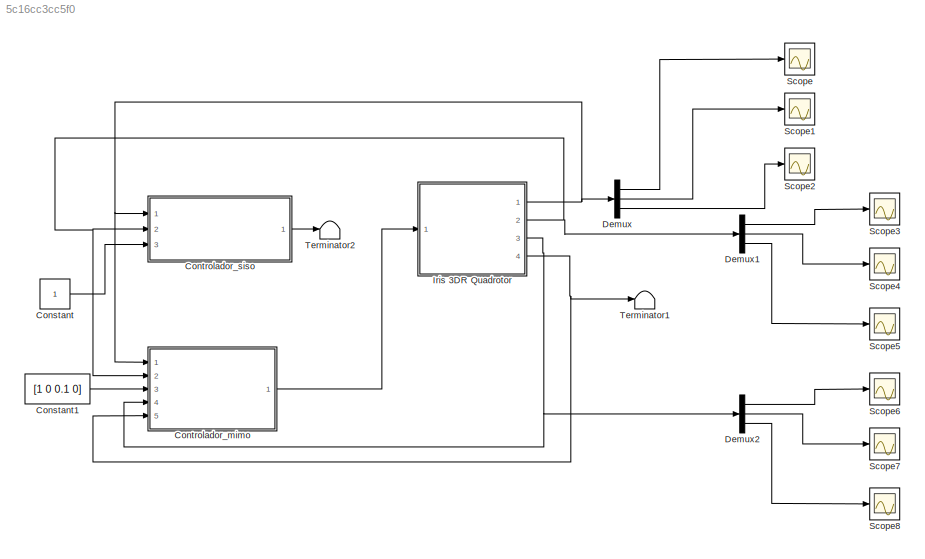
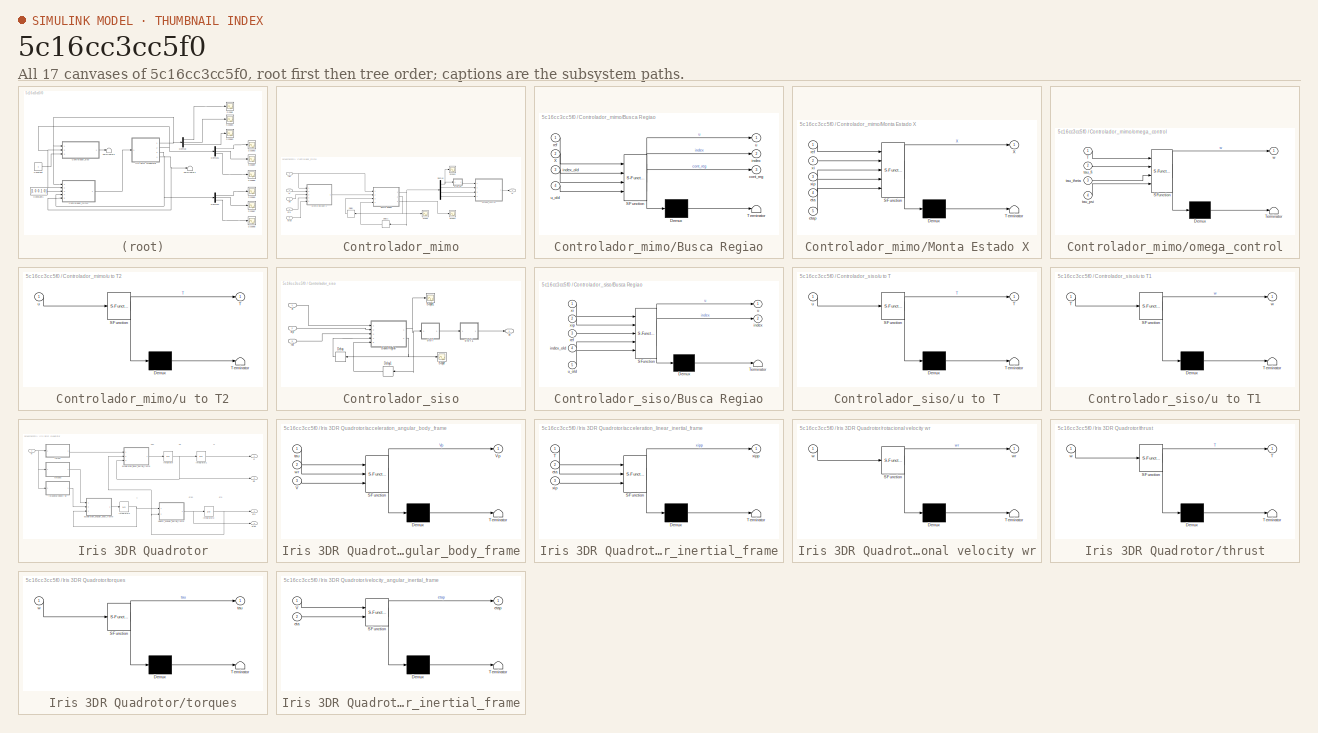
[diagram: thumbnail index - all 17 canvases of the model, root first then tree order]
MODEL slx_5c16cc3cc5f0
KIND model
CONFIG AbsTol = auto
CONFIG FixedStep = 0.01
CONFIG MaxStep = auto
CONFIG MinStep = auto
CONFIG RelTol = 1e-3
CONFIG SampleTimeConstraint = Unconstrained
CONFIG Solver = ode1
CONFIG SolverMode = Auto
CONFIG SolverName = ode1
CONFIG StartTime = 0.0
CONFIG StopTime = 25
BLOCK [Constant] Constant
BLOCK [Constant] Constant1
  Value = [1 0 0.1 0]
BLOCK [SubSystem] Controlador_mimo
  Ports = [5, 1]
  RequestExecContextInheritance = off
  Variant = off
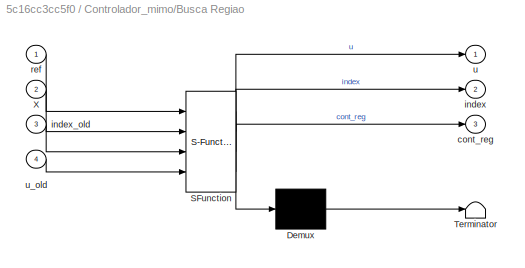
BLOCK [SubSystem] Controlador_mimo/Busca Regiao
  ErrorFcn = Stateflow.Translate.translate
  InitFcn = data = load('example_struct_regions_n10_nu2.mat');\nstruct_regions = data.reg_struct;
  PermitHierarchicalResolution = ExplicitOnly
  Ports = [4, 3]
  RequestExecContextInheritance = off
  SFBlockType = MATLAB Function
  TreatAsAtomicUnit = on
  Variant = off
BLOCK [Demux] Controlador_mimo/Busca Regiao/ Demux 
  Outputs = 1
  Ports = [1, 1]
BLOCK [S-Function] Controlador_mimo/Busca Regiao/ SFunction 
  EnableBusSupport = on
  FunctionName = sf_sfun
  Parameters = struct_regions
  PortCounts = [4 4]
  Ports = [4, 4]
  SFunctionDeploymentMode = off
  Tag = Stateflow S-Function modelo_nlinear_iris 10
BLOCK [Terminator] Controlador_mimo/Busca Regiao/ Terminator 
BLOCK [Inport] Controlador_mimo/Busca Regiao/X
  IconDisplay = Port number
  Port = 2
BLOCK [Outport] Controlador_mimo/Busca Regiao/cont_reg
  IconDisplay = Port number
  Port = 3
BLOCK [Outport] Controlador_mimo/Busca Regiao/index
  IconDisplay = Port number
  Port = 2
BLOCK [Inport] Controlador_mimo/Busca Regiao/index_old
  IconDisplay = Port number
  Port = 3
BLOCK [Inport] Controlador_mimo/Busca Regiao/ref
  IconDisplay = Port number
BLOCK [Outport] Controlador_mimo/Busca Regiao/u
  IconDisplay = Port number
BLOCK [Inport] Controlador_mimo/Busca Regiao/u_old
  IconDisplay = Port number
  Port = 4
BLOCK [Delay] Controlador_mimo/Delay
  DelayLength = 1
  InitialCondition = 0
  InputPortMap = u0
  Ports = [1, 1]
BLOCK [Delay] Controlador_mimo/Delay1
  DelayLength = 1
  InitialCondition = [0 0 0 0]'
  InputPortMap = u0
  Ports = [1, 1]
BLOCK [Demux] Controlador_mimo/Demux
  DisplayOption = bar
  Ports = [1, 4]
BLOCK [SubSystem] Controlador_mimo/Monta Estado X
  ErrorFcn = Stateflow.Translate.translate
  PermitHierarchicalResolution = ExplicitOnly
  Ports = [5, 1]
  RequestExecContextInheritance = off
  SFBlockType = MATLAB Function
  TreatAsAtomicUnit = on
  Variant = off
BLOCK [Demux] Controlador_mimo/Monta Estado X/ Demux 
  Outputs = 1
  Ports = [1, 1]
BLOCK [S-Function] Controlador_mimo/Monta Estado X/ SFunction 
  EnableBusSupport = on
  FunctionName = sf_sfun
  PortCounts = [5 2]
  Ports = [5, 2]
  SFunctionDeploymentMode = off
  Tag = Stateflow S-Function modelo_nlinear_iris 11
BLOCK [Terminator] Controlador_mimo/Monta Estado X/ Terminator 
BLOCK [Outport] Controlador_mimo/Monta Estado X/X
  IconDisplay = Port number
BLOCK [Inport] Controlador_mimo/Monta Estado X/eta
  IconDisplay = Port number
  Port = 4
BLOCK [Inport] Controlador_mimo/Monta Estado X/etap
  IconDisplay = Port number
  Port = 5
BLOCK [Inport] Controlador_mimo/Monta Estado X/ref
  IconDisplay = Port number
BLOCK [Inport] Controlador_mimo/Monta Estado X/xi
  IconDisplay = Port number
  Port = 2
BLOCK [Inport] Controlador_mimo/Monta Estado X/xip
  IconDisplay = Port number
  Port = 3
BLOCK [Scope] Controlador_mimo/Scope
  Ports = [1]
  ScopeSpecificationString = Simulink.scopes.TimeScopeBlockCfg('CurrentConfiguration', extmgr.ConfigurationSet(extmgr.Configuration('Core','General UI',true),extmgr.Configuration('Core','Source UI',true),extmgr.Configuration('Sources','WiredSimulink',true,'DataLoggingVariableName','ScopeData1'),extmgr.Configuration('Visuals','Time Domain',true,'SerializedDisplays',{struct('MinYLimReal','-2.625','MaxYLimReal','33.625','YLabelR...<+1421ch>
BLOCK [Scope] Controlador_mimo/Scope1
  Ports = [1]
  ScopeSpecificationString = Simulink.scopes.TimeScopeBlockCfg('CurrentConfiguration', extmgr.ConfigurationSet(extmgr.Configuration('Core','General UI',true),extmgr.Configuration('Core','Source UI',true),extmgr.Configuration('Sources','WiredSimulink',true,'DataLoggingVariableName','ScopeData2'),extmgr.Configuration('Visuals','Time Domain',true,'SerializedDisplays',{struct('MinYLimReal','0.9','MaxYLimReal','1.1','YLabelReal','...<+1398ch>
BLOCK [Scope] Controlador_mimo/Scope2
  Ports = [1]
  ScopeSpecificationString = Simulink.scopes.TimeScopeBlockCfg('CurrentConfiguration', extmgr.ConfigurationSet(extmgr.Configuration('Core','General UI',true),extmgr.Configuration('Core','Source UI',true),extmgr.Configuration('Sources','WiredSimulink',true,'DataLoggingVariableName','ScopeData1'),extmgr.Configuration('Visuals','Time Domain',true,'SerializedDisplays',{struct('MinYLimReal','-17851289987376654000000000000000000000...<+2404ch>
BLOCK [Inport] Controlador_mimo/eta
  IconDisplay = Port number
  Port = 4
BLOCK [Inport] Controlador_mimo/etap
  IconDisplay = Port number
  Port = 5
BLOCK [SubSystem] Controlador_mimo/omega_control
  ErrorFcn = Stateflow.Translate.translate
  PermitHierarchicalResolution = ExplicitOnly
  Ports = [4, 1]
  RequestExecContextInheritance = off
  SFBlockType = MATLAB Function
  TreatAsAtomicUnit = on
  TreatAsGroupedWhenPropagatingVariantConditions = off
  Variant = off
BLOCK [Demux] Controlador_mimo/omega_control/ Demux 
  Outputs = 1
  Ports = [1, 1]
BLOCK [S-Function] Controlador_mimo/omega_control/ SFunction 
  EnableBusSupport = on
  FunctionName = sf_sfun
  Parameters = KD,KT,lx,ly
  PortCounts = [4 2]
  Ports = [4, 2]
  SFunctionDeploymentMode = off
  Tag = Stateflow S-Function modelo_nlinear_iris 13
BLOCK [Terminator] Controlador_mimo/omega_control/ Terminator 
BLOCK [Inport] Controlador_mimo/omega_control/T
  IconDisplay = Port number
BLOCK [Inport] Controlador_mimo/omega_control/tau_fi
  IconDisplay = Port number
  Port = 2
BLOCK [Inport] Controlador_mimo/omega_control/tau_psi
  IconDisplay = Port number
  Port = 4
BLOCK [Inport] Controlador_mimo/omega_control/tau_theta
  IconDisplay = Port number
  Port = 3
BLOCK [Outport] Controlador_mimo/omega_control/w
  IconDisplay = Port number
BLOCK [Inport] Controlador_mimo/ref
  IconDisplay = Port number
  Port = 3
BLOCK [SubSystem] Controlador_mimo/u to T2
  ErrorFcn = Stateflow.Translate.translate
  PermitHierarchicalResolution = ExplicitOnly
  Ports = [1, 1]
  RequestExecContextInheritance = off
  SFBlockType = MATLAB Function
  TreatAsAtomicUnit = on
  Variant = off
BLOCK [Demux] Controlador_mimo/u to T2/ Demux 
  Outputs = 1
  Ports = [1, 1]
BLOCK [S-Function] Controlador_mimo/u to T2/ SFunction 
  EnableBusSupport = on
  FunctionName = sf_sfun
  Parameters = g,m
  PortCounts = [1 2]
  Ports = [1, 2]
  SFunctionDeploymentMode = off
  Tag = Stateflow S-Function modelo_nlinear_iris 14
BLOCK [Terminator] Controlador_mimo/u to T2/ Terminator 
BLOCK [Outport] Controlador_mimo/u to T2/T
  IconDisplay = Port number
BLOCK [Inport] Controlador_mimo/u to T2/u
  IconDisplay = Port number
BLOCK [Outport] Controlador_mimo/w
  IconDisplay = Port number
BLOCK [Inport] Controlador_mimo/xi
  IconDisplay = Port number
BLOCK [Inport] Controlador_mimo/xip
  IconDisplay = Port number
  Port = 2
BLOCK [SubSystem] Controlador_siso
  Ports = [3, 1]
  RequestExecContextInheritance = off
  Variant = off
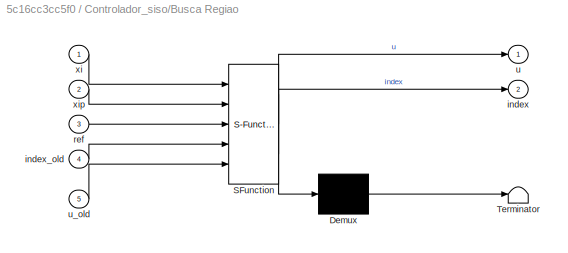
BLOCK [SubSystem] Controlador_siso/Busca Regiao
  ErrorFcn = Stateflow.Translate.translate
  PermitHierarchicalResolution = ExplicitOnly
  Ports = [5, 2]
  RequestExecContextInheritance = off
  SFBlockType = MATLAB Function
  TreatAsAtomicUnit = on
  Variant = off
BLOCK [Demux] Controlador_siso/Busca Regiao/ Demux 
  Outputs = 1
  Ports = [1, 1]
BLOCK [S-Function] Controlador_siso/Busca Regiao/ SFunction 
  EnableBusSupport = on
  FunctionName = sf_sfun
  PortCounts = [5 3]
  Ports = [5, 3]
  SFunctionDeploymentMode = off
  Tag = Stateflow S-Function modelo_nlinear_iris 6
BLOCK [Terminator] Controlador_siso/Busca Regiao/ Terminator 
BLOCK [Outport] Controlador_siso/Busca Regiao/index
  IconDisplay = Port number
  Port = 2
BLOCK [Inport] Controlador_siso/Busca Regiao/index_old
  IconDisplay = Port number
  Port = 4
BLOCK [Inport] Controlador_siso/Busca Regiao/ref
  IconDisplay = Port number
  Port = 3
BLOCK [Outport] Controlador_siso/Busca Regiao/u
  IconDisplay = Port number
BLOCK [Inport] Controlador_siso/Busca Regiao/u_old
  IconDisplay = Port number
  Port = 5
BLOCK [Inport] Controlador_siso/Busca Regiao/xi
  IconDisplay = Port number
BLOCK [Inport] Controlador_siso/Busca Regiao/xip
  IconDisplay = Port number
  Port = 2
BLOCK [Delay] Controlador_siso/Delay
  DelayLength = 1
  InitialCondition = 0
  InputPortMap = u0
  Ports = [1, 1]
BLOCK [Delay] Controlador_siso/Delay1
  DelayLength = 1
  InitialCondition = 0
  InputPortMap = u0
  Ports = [1, 1]
BLOCK [Scope] Controlador_siso/Scope
  Ports = [1]
  ScopeSpecificationString = Simulink.scopes.TimeScopeBlockCfg('CurrentConfiguration', extmgr.ConfigurationSet(extmgr.Configuration('Core','General UI',true),extmgr.Configuration('Core','Source UI',true),extmgr.Configuration('Sources','WiredSimulink',true,'DataLoggingVariableName','ScopeData1'),extmgr.Configuration('Visuals','Time Domain',true,'SerializedDisplays',{struct('MinYLimReal','-3.00000','MaxYLimReal','37.00000','YLa...<+1381ch>
BLOCK [Scope] Controlador_siso/Scope1
  Ports = [1]
  ScopeSpecificationString = Simulink.scopes.TimeScopeBlockCfg('CurrentConfiguration', extmgr.ConfigurationSet(extmgr.Configuration('Core','General UI',true),extmgr.Configuration('Core','Source UI',true),extmgr.Configuration('Sources','WiredSimulink',true,'DataLoggingVariableName','ScopeData2'),extmgr.Configuration('Visuals','Time Domain',true,'SerializedDisplays',{struct('MinYLimReal','-13.48875','MaxYLimReal','23.29875','YL...<+1379ch>
BLOCK [Inport] Controlador_siso/ref
  IconDisplay = Port number
  Port = 3
BLOCK [SubSystem] Controlador_siso/u to T
  ErrorFcn = Stateflow.Translate.translate
  PermitHierarchicalResolution = ExplicitOnly
  Ports = [1, 1]
  RequestExecContextInheritance = off
  SFBlockType = MATLAB Function
  TreatAsAtomicUnit = on
  Variant = off
BLOCK [Demux] Controlador_siso/u to T/ Demux 
  Outputs = 1
  Ports = [1, 1]
BLOCK [S-Function] Controlador_siso/u to T/ SFunction 
  EnableBusSupport = on
  FunctionName = sf_sfun
  Parameters = g,m
  PortCounts = [1 2]
  Ports = [1, 2]
  SFunctionDeploymentMode = off
  Tag = Stateflow S-Function modelo_nlinear_iris 8
BLOCK [Terminator] Controlador_siso/u to T/ Terminator 
BLOCK [Outport] Controlador_siso/u to T/T
  IconDisplay = Port number
BLOCK [Inport] Controlador_siso/u to T/u
  IconDisplay = Port number
BLOCK [SubSystem] Controlador_siso/u to T1
  ErrorFcn = Stateflow.Translate.translate
  PermitHierarchicalResolution = ExplicitOnly
  Ports = [1, 1]
  RequestExecContextInheritance = off
  SFBlockType = MATLAB Function
  TreatAsAtomicUnit = on
  Variant = off
BLOCK [Demux] Controlador_siso/u to T1/ Demux 
  Outputs = 1
  Ports = [1, 1]
BLOCK [S-Function] Controlador_siso/u to T1/ SFunction 
  EnableBusSupport = on
  FunctionName = sf_sfun
  Parameters = KT
  PortCounts = [1 2]
  Ports = [1, 2]
  SFunctionDeploymentMode = off
  Tag = Stateflow S-Function modelo_nlinear_iris 9
BLOCK [Terminator] Controlador_siso/u to T1/ Terminator 
BLOCK [Inport] Controlador_siso/u to T1/T
  IconDisplay = Port number
BLOCK [Outport] Controlador_siso/u to T1/w
  IconDisplay = Port number
BLOCK [Outport] Controlador_siso/w
  IconDisplay = Port number
BLOCK [Inport] Controlador_siso/xi
  IconDisplay = Port number
BLOCK [Inport] Controlador_siso/xip
  IconDisplay = Port number
  Port = 2
BLOCK [Demux] Demux
  DisplayOption = bar
  Outputs = 3
  Ports = [1, 3]
BLOCK [Demux] Demux1
  DisplayOption = bar
  Outputs = 3
  Ports = [1, 3]
BLOCK [Demux] Demux2
  DisplayOption = bar
  Outputs = 3
  Ports = [1, 3]
BLOCK [SubSystem] Iris 3DR Quadrotor
  Ports = [1, 4]
  RequestExecContextInheritance = off
  Variant = off
BLOCK [Integrator] Iris 3DR Quadrotor/Integrator
  InitialCondition = [0 0 0]
  Ports = [1, 1]
BLOCK [Integrator] Iris 3DR Quadrotor/Integrator1
  InitialCondition = [0 0 0]
  Ports = [1, 1]
BLOCK [Integrator] Iris 3DR Quadrotor/Integrator2
  InitialCondition = [0 0 0]
  Ports = [1, 1]
BLOCK [Integrator] Iris 3DR Quadrotor/Integrator3
  InitialCondition = [0 0 0 ]
  Ports = [1, 1]
BLOCK [SubSystem] Iris 3DR Quadrotor/acceleration_angular_body_frame
  ErrorFcn = Stateflow.Translate.translate
  PermitHierarchicalResolution = ExplicitOnly
  Ports = [3, 1]
  RequestExecContextInheritance = off
  SFBlockType = MATLAB Function
  TreatAsAtomicUnit = on
  Variant = off
BLOCK [Demux] Iris 3DR Quadrotor/acceleration_angular_body_frame/ Demux 
  Outputs = 1
  Ports = [1, 1]
BLOCK [S-Function] Iris 3DR Quadrotor/acceleration_angular_body_frame/ SFunction 
  EnableBusSupport = on
  FunctionName = sf_sfun
  Parameters = Ir,Ixx,Iyy,Izz
  PortCounts = [3 2]
  Ports = [3, 2]
  SFunctionDeploymentMode = off
  Tag = Stateflow S-Function modelo_nlinear_iris 5
BLOCK [Terminator] Iris 3DR Quadrotor/acceleration_angular_body_frame/ Terminator 
BLOCK [Inport] Iris 3DR Quadrotor/acceleration_angular_body_frame/V
  IconDisplay = Port number
  Port = 3
BLOCK [Outport] Iris 3DR Quadrotor/acceleration_angular_body_frame/Vp
  IconDisplay = Port number
BLOCK [Inport] Iris 3DR Quadrotor/acceleration_angular_body_frame/tau
  IconDisplay = Port number
BLOCK [Inport] Iris 3DR Quadrotor/acceleration_angular_body_frame/wr
  IconDisplay = Port number
  Port = 2
BLOCK [SubSystem] Iris 3DR Quadrotor/acceleration_linear_inertial_frame
  ErrorFcn = Stateflow.Translate.translate
  PermitHierarchicalResolution = ExplicitOnly
  Ports = [3, 1]
  RequestExecContextInheritance = off
  SFBlockType = MATLAB Function
  TreatAsAtomicUnit = on
  Variant = off
BLOCK [Demux] Iris 3DR Quadrotor/acceleration_linear_inertial_frame/ Demux 
  Outputs = 1
  Ports = [1, 1]
BLOCK [S-Function] Iris 3DR Quadrotor/acceleration_linear_inertial_frame/ SFunction 
  EnableBusSupport = on
  FunctionName = sf_sfun
  Parameters = Ax,Ay,Az,g,m
  PortCounts = [3 2]
  Ports = [3, 2]
  SFunctionDeploymentMode = off
  Tag = Stateflow S-Function modelo_nlinear_iris 2
BLOCK [Terminator] Iris 3DR Quadrotor/acceleration_linear_inertial_frame/ Terminator 
BLOCK [Inport] Iris 3DR Quadrotor/acceleration_linear_inertial_frame/T
  IconDisplay = Port number
BLOCK [Inport] Iris 3DR Quadrotor/acceleration_linear_inertial_frame/eta
  IconDisplay = Port number
  Port = 2
BLOCK [Inport] Iris 3DR Quadrotor/acceleration_linear_inertial_frame/xip
  IconDisplay = Port number
  Port = 3
BLOCK [Outport] Iris 3DR Quadrotor/acceleration_linear_inertial_frame/xipp
  IconDisplay = Port number
BLOCK [Outport] Iris 3DR Quadrotor/eta
  IconDisplay = Port number
  Port = 3
BLOCK [Outport] Iris 3DR Quadrotor/etap
  IconDisplay = Port number
  Port = 4
BLOCK [SubSystem] Iris 3DR Quadrotor/rotacional velocity wr
  ErrorFcn = Stateflow.Translate.translate
  PermitHierarchicalResolution = ExplicitOnly
  Ports = [1, 1]
  RequestExecContextInheritance = off
  SFBlockType = MATLAB Function
  TreatAsAtomicUnit = on
  Variant = off
BLOCK [Demux] Iris 3DR Quadrotor/rotacional velocity wr/ Demux 
  Outputs = 1
  Ports = [1, 1]
BLOCK [S-Function] Iris 3DR Quadrotor/rotacional velocity wr/ SFunction 
  EnableBusSupport = on
  FunctionName = sf_sfun
  PortCounts = [1 2]
  Ports = [1, 2]
  SFunctionDeploymentMode = off
  Tag = Stateflow S-Function modelo_nlinear_iris 7
BLOCK [Terminator] Iris 3DR Quadrotor/rotacional velocity wr/ Terminator 
BLOCK [Inport] Iris 3DR Quadrotor/rotacional velocity wr/w
  IconDisplay = Port number
BLOCK [Outport] Iris 3DR Quadrotor/rotacional velocity wr/wr
  IconDisplay = Port number
BLOCK [SubSystem] Iris 3DR Quadrotor/thrust
  ErrorFcn = Stateflow.Translate.translate
  PermitHierarchicalResolution = ExplicitOnly
  Ports = [1, 1]
  RequestExecContextInheritance = off
  SFBlockType = MATLAB Function
  TreatAsAtomicUnit = on
  Variant = off
BLOCK [Demux] Iris 3DR Quadrotor/thrust/ Demux 
  Outputs = 1
  Ports = [1, 1]
BLOCK [S-Function] Iris 3DR Quadrotor/thrust/ SFunction 
  EnableBusSupport = on
  FunctionName = sf_sfun
  Parameters = KT
  PortCounts = [1 2]
  Ports = [1, 2]
  SFunctionDeploymentMode = off
  Tag = Stateflow S-Function modelo_nlinear_iris 3
BLOCK [Terminator] Iris 3DR Quadrotor/thrust/ Terminator 
BLOCK [Outport] Iris 3DR Quadrotor/thrust/T
  IconDisplay = Port number
BLOCK [Inport] Iris 3DR Quadrotor/thrust/w
  IconDisplay = Port number
BLOCK [SubSystem] Iris 3DR Quadrotor/torques
  ErrorFcn = Stateflow.Translate.translate
  PermitHierarchicalResolution = ExplicitOnly
  Ports = [1, 1]
  RequestExecContextInheritance = off
  SFBlockType = MATLAB Function
  TreatAsAtomicUnit = on
  Variant = off
BLOCK [Demux] Iris 3DR Quadrotor/torques/ Demux 
  Outputs = 1
  Ports = [1, 1]
BLOCK [S-Function] Iris 3DR Quadrotor/torques/ SFunction 
  EnableBusSupport = on
  FunctionName = sf_sfun
  Parameters = KD,KT,lx,ly
  PortCounts = [1 2]
  Ports = [1, 2]
  SFunctionDeploymentMode = off
  Tag = Stateflow S-Function modelo_nlinear_iris 4
BLOCK [Terminator] Iris 3DR Quadrotor/torques/ Terminator 
BLOCK [Outport] Iris 3DR Quadrotor/torques/tau
  IconDisplay = Port number
BLOCK [Inport] Iris 3DR Quadrotor/torques/w
  IconDisplay = Port number
BLOCK [SubSystem] Iris 3DR Quadrotor/velocity_angular_inertial_frame
  ErrorFcn = Stateflow.Translate.translate
  PermitHierarchicalResolution = ExplicitOnly
  Ports = [2, 1]
  RequestExecContextInheritance = off
  SFBlockType = MATLAB Function
  TreatAsAtomicUnit = on
  Variant = off
BLOCK [Demux] Iris 3DR Quadrotor/velocity_angular_inertial_frame/ Demux 
  Outputs = 1
  Ports = [1, 1]
BLOCK [S-Function] Iris 3DR Quadrotor/velocity_angular_inertial_frame/ SFunction 
  EnableBusSupport = on
  FunctionName = sf_sfun
  PortCounts = [2 2]
  Ports = [2, 2]
  SFunctionDeploymentMode = off
  Tag = Stateflow S-Function modelo_nlinear_iris 1
BLOCK [Terminator] Iris 3DR Quadrotor/velocity_angular_inertial_frame/ Terminator 
BLOCK [Inport] Iris 3DR Quadrotor/velocity_angular_inertial_frame/V
  IconDisplay = Port number
BLOCK [Inport] Iris 3DR Quadrotor/velocity_angular_inertial_frame/eta
  IconDisplay = Port number
  Port = 2
BLOCK [Outport] Iris 3DR Quadrotor/velocity_angular_inertial_frame/etap
  IconDisplay = Port number
BLOCK [Inport] Iris 3DR Quadrotor/w
  IconDisplay = Port number
BLOCK [Outport] Iris 3DR Quadrotor/xi
  IconDisplay = Port number
BLOCK [Outport] Iris 3DR Quadrotor/xip
  IconDisplay = Port number
  Port = 2
BLOCK [Scope] Scope
  Ports = [1]
  ScopeSpecificationString = Simulink.scopes.TimeScopeBlockCfg('CurrentConfiguration', extmgr.ConfigurationSet(extmgr.Configuration('Core','General UI',true),extmgr.Configuration('Core','Source UI',true),extmgr.Configuration('Sources','WiredSimulink',true),extmgr.Configuration('Visuals','Time Domain',true,'SerializedDisplays',{struct('MinYLimReal','-0.0000000000000000000042','MaxYLimReal','0.0000000000000000000005','YLabelRea...<+1463ch>
BLOCK [Scope] Scope1
  Ports = [1]
  ScopeSpecificationString = Simulink.scopes.TimeScopeBlockCfg('CurrentConfiguration', extmgr.ConfigurationSet(extmgr.Configuration('Core','General UI',true),extmgr.Configuration('Core','Source UI',true),extmgr.Configuration('Sources','WiredSimulink',true,'DataLoggingVariableName','ScopeData1'),extmgr.Configuration('Visuals','Time Domain',true,'SerializedDisplays',{struct('MinYLimReal','-0.0000000000000000000004','MaxYLimReal...<+1502ch>
BLOCK [Scope] Scope2
  Ports = [1]
  ScopeSpecificationString = Simulink.scopes.TimeScopeBlockCfg('CurrentConfiguration', extmgr.ConfigurationSet(extmgr.Configuration('Core','General UI',true),extmgr.Configuration('Core','Source UI',true),extmgr.Configuration('Sources','WiredSimulink',true,'DataLoggingVariableName','ScopeData2'),extmgr.Configuration('Visuals','Time Domain',true,'SerializedDisplays',{struct('MinYLimReal','-0.20952','MaxYLimReal','1.88569','YLab...<+1418ch>
BLOCK [Scope] Scope3
  Ports = [1]
  ScopeSpecificationString = Simulink.scopes.TimeScopeBlockCfg('CurrentConfiguration', extmgr.ConfigurationSet(extmgr.Configuration('Core','General UI',true),extmgr.Configuration('Core','Source UI',true),extmgr.Configuration('Sources','WiredSimulink',true,'DataLoggingVariableName','ScopeData3'),extmgr.Configuration('Visuals','Time Domain',true,'SerializedDisplays',{struct('MinYLimReal','-0.66706','MaxYLimReal','6.00351','YLab...<+1367ch>
BLOCK [Scope] Scope4
  Ports = [1]
  ScopeSpecificationString = Simulink.scopes.TimeScopeBlockCfg('CurrentConfiguration', extmgr.ConfigurationSet(extmgr.Configuration('Core','General UI',true),extmgr.Configuration('Core','Source UI',true),extmgr.Configuration('Sources','WiredSimulink',true,'DataLoggingVariableName','ScopeData4'),extmgr.Configuration('Visuals','Time Domain',true,'SerializedDisplays',{struct('MinYLimReal','-0.000000000000006','MaxYLimReal','0.00...<+1447ch>
BLOCK [Scope] Scope5
  Ports = [1]
  ScopeSpecificationString = Simulink.scopes.TimeScopeBlockCfg('CurrentConfiguration', extmgr.ConfigurationSet(extmgr.Configuration('Core','General UI',true),extmgr.Configuration('Core','Source UI',true),extmgr.Configuration('Sources','WiredSimulink',true,'DataLoggingVariableName','ScopeData5'),extmgr.Configuration('Visuals','Time Domain',true,'SerializedDisplays',{struct('MinYLimReal','-6.25107','MaxYLimReal','6.64355','YLab...<+1367ch>
BLOCK [Scope] Scope6
  Ports = [1]
  ScopeSpecificationString = Simulink.scopes.TimeScopeBlockCfg('CurrentConfiguration', extmgr.ConfigurationSet(extmgr.Configuration('Core','General UI',true),extmgr.Configuration('Core','Source UI',true),extmgr.Configuration('Sources','WiredSimulink',true,'DataLoggingVariableName','ScopeData1'),extmgr.Configuration('Visuals','Time Domain',true,'SerializedDisplays',{struct('MinYLimReal','-0.00000000000000019','MaxYLimReal','0....<+1489ch>
BLOCK [Scope] Scope7
  Ports = [1]
  ScopeSpecificationString = Simulink.scopes.TimeScopeBlockCfg('CurrentConfiguration', extmgr.ConfigurationSet(extmgr.Configuration('Core','General UI',true),extmgr.Configuration('Core','Source UI',true),extmgr.Configuration('Sources','WiredSimulink',true,'DataLoggingVariableName','ScopeData2'),extmgr.Configuration('Visuals','Time Domain',true,'SerializedDisplays',{struct('MinYLimReal','-0.01714','MaxYLimReal','0.15424','YLab...<+1393ch>
BLOCK [Scope] Scope8
  Ports = [1]
  ScopeSpecificationString = Simulink.scopes.TimeScopeBlockCfg('CurrentConfiguration', extmgr.ConfigurationSet(extmgr.Configuration('Core','General UI',true),extmgr.Configuration('Core','Source UI',true),extmgr.Configuration('Sources','WiredSimulink',true,'DataLoggingVariableName','ScopeData3'),extmgr.Configuration('Visuals','Time Domain',true,'SerializedDisplays',{struct('MinYLimReal','-0.0000000000000001','MaxYLimReal','0.0...<+1457ch>
BLOCK [Terminator] Terminator1
BLOCK [Terminator] Terminator2
ANNOTATION Iris 3DR Quadrotor: V
ANNOTATION Iris 3DR Quadrotor: eta
ANNOTATION Iris 3DR Quadrotor: etap
ANNOTATION Iris 3DR Quadrotor: xi
ANNOTATION Iris 3DR Quadrotor: xip
ANNOTATION Iris 3DR Quadrotor: xipp
LINE Constant1:1 -> Controlador_mimo:3
LINE Constant:1 -> Controlador_siso:3
NET Controlador_mimo/Busca Regiao:1 -> Controlador_mimo/Delay1:1, Controlador_mimo/Demux:1
NET Controlador_mimo/Busca Regiao:2 -> Controlador_mimo/Delay:1, Controlador_mimo/Scope:1
LINE Controlador_mimo/Busca Regiao:3 -> Controlador_mimo/Scope1:1
LINE Controlador_mimo/Delay1:1 -> Controlador_mimo/Busca Regiao:4
LINE Controlador_mimo/Delay:1 -> Controlador_mimo/Busca Regiao:3
NET Controlador_mimo/Demux:1 -> Controlador_mimo/Scope2:1, Controlador_mimo/u to T2:1
LINE Controlador_mimo/Demux:2 -> Controlador_mimo/omega_control:2
LINE Controlador_mimo/Demux:3 -> Controlador_mimo/omega_control:3
LINE Controlador_mimo/Demux:4 -> Controlador_mimo/omega_control:4
LINE Controlador_mimo/Monta Estado X:1 -> Controlador_mimo/Busca Regiao:2
LINE Controlador_mimo/eta:1 -> Controlador_mimo/Monta Estado X:4
LINE Controlador_mimo/etap:1 -> Controlador_mimo/Monta Estado X:5
LINE Controlador_mimo/omega_control:1 -> Controlador_mimo/w:1
NET Controlador_mimo/ref:1 -> Controlador_mimo/Busca Regiao:1, Controlador_mimo/Monta Estado X:1
LINE Controlador_mimo/u to T2:1 -> Controlador_mimo/omega_control:1
LINE Controlador_mimo/xi:1 -> Controlador_mimo/Monta Estado X:2
LINE Controlador_mimo/xip:1 -> Controlador_mimo/Monta Estado X:3
LINE Controlador_mimo:1 -> Iris 3DR Quadrotor:1
NET Controlador_siso/Busca Regiao:1 -> Controlador_siso/Delay1:1, Controlador_siso/Scope1:1, Controlador_siso/u to T:1
NET Controlador_siso/Busca Regiao:2 -> Controlador_siso/Delay:1, Controlador_siso/Scope:1
LINE Controlador_siso/Delay1:1 -> Controlador_siso/Busca Regiao:5
LINE Controlador_siso/Delay:1 -> Controlador_siso/Busca Regiao:4
LINE Controlador_siso/ref:1 -> Controlador_siso/Busca Regiao:3
LINE Controlador_siso/u to T1:1 -> Controlador_siso/w:1
LINE Controlador_siso/u to T:1 -> Controlador_siso/u to T1:1
LINE Controlador_siso/xi:1 -> Controlador_siso/Busca Regiao:1
LINE Controlador_siso/xip:1 -> Controlador_siso/Busca Regiao:2
LINE Controlador_siso:1 -> Terminator2:1
LINE Demux1:1 -> Scope3:1
LINE Demux1:2 -> Scope4:1
LINE Demux1:3 -> Scope5:1
LINE Demux2:1 -> Scope6:1
LINE Demux2:2 -> Scope7:1
LINE Demux2:3 -> Scope8:1
LINE Demux:1 -> Scope:1
LINE Demux:2 -> Scope1:1
LINE Demux:3 -> Scope2:1
LINE Iris 3DR Quadrotor/Integrator1:1 -> Iris 3DR Quadrotor/xi:1
NET Iris 3DR Quadrotor/Integrator2:1 -> Iris 3DR Quadrotor/acceleration_angular_body_frame:3, Iris 3DR Quadrotor/velocity_angular_inertial_frame:1
NET Iris 3DR Quadrotor/Integrator3:1 -> Iris 3DR Quadrotor/acceleration_linear_inertial_frame:2, Iris 3DR Quadrotor/eta:1, Iris 3DR Quadrotor/velocity_angular_inertial_frame:2
NET Iris 3DR Quadrotor/Integrator:1 -> Iris 3DR Quadrotor/Integrator1:1, Iris 3DR Quadrotor/acceleration_linear_inertial_frame:3, Iris 3DR Quadrotor/xip:1
LINE Iris 3DR Quadrotor/acceleration_angular_body_frame:1 -> Iris 3DR Quadrotor/Integrator2:1
LINE Iris 3DR Quadrotor/acceleration_linear_inertial_frame:1 -> Iris 3DR Quadrotor/Integrator:1
LINE Iris 3DR Quadrotor/rotacional velocity wr:1 -> Iris 3DR Quadrotor/acceleration_angular_body_frame:2
LINE Iris 3DR Quadrotor/thrust:1 -> Iris 3DR Quadrotor/acceleration_linear_inertial_frame:1
LINE Iris 3DR Quadrotor/torques:1 -> Iris 3DR Quadrotor/acceleration_angular_body_frame:1
NET Iris 3DR Quadrotor/velocity_angular_inertial_frame:1 -> Iris 3DR Quadrotor/Integrator3:1, Iris 3DR Quadrotor/etap:1
NET Iris 3DR Quadrotor/w:1 -> Iris 3DR Quadrotor/rotacional velocity wr:1, Iris 3DR Quadrotor/thrust:1, Iris 3DR Quadrotor/torques:1
NET Iris 3DR Quadrotor:1 -> Controlador_mimo:1, Controlador_siso:1, Demux:1
NET Iris 3DR Quadrotor:2 -> Controlador_mimo:2, Controlador_siso:2, Demux1:1
NET Iris 3DR Quadrotor:3 -> Controlador_mimo:4, Demux2:1
NET Iris 3DR Quadrotor:4 -> Controlador_mimo:5, Terminator1:1
note: NET lines group one-source signal fan-out (src -> all destinations, sorted); 1:1 wires keep LINE
CHART Iris 3DR Quadrotor/velocity_angular_inertial_frame states=1 transitions=1
  STATE_LABEL 'eML_blk_kernel()'
  STATE_LABEL 'SCRIPT:\nfunction etap = fcn(V, eta)\n%Angular velocity at inertial frame\netap = [V(1) + V(2)*sin(eta(1))*tan(eta(2)) + V(3)*cos(eta(1))*tan(eta(2));\n        V(2)*cos(eta(1)) - V(3)*sin(eta(1));\n        V(2)*sin(eta(1))/cos(eta(2)) + V(3)*cos(eta(1))/cos(eta(2))];\n    \n% etap(1) = V(1) + V(2)*sin(eta(1))*tan(eta(2)) + V(3)*cos(eta(1))*tan(eta(2));\n% etap(2) = V(2)*cos(eta(1)) - V(3)*sin(eta(1));\n% e...<+71ch>'
CHART Iris 3DR Quadrotor/acceleration_linear_inertial_frame states=1 transitions=1
  STATE_LABEL 'eML_blk_kernel()'
  STATE_LABEL 'SCRIPT:\nfunction xipp = fcn(T, eta, xip, g, m, Ax, Ay, Az)\n%Linear Acceleration at inertial frame\n% xipp(1) = -Ax/m*xip(1) + 1/m*(cos(eta(1))*sin(eta(2))*cos(eta(6)) + sin(eta(3))*sin(eta(1)))*T;\n% xipp(2) = -Ay/m*xip(2) + 1/m*(cos(eta(1))*sin(eta(2))*sin(eta(3)) - cos(eta(3))*sin(eta(1)))*T;\n% xipp(3) = -Az/m*xip(3) - g + 1/m*(cos(eta(1))*cos(eta(2)))*T;\n\nxipp = [-Ax/m*xip(1) + 1/m*(cos(eta(1))*s...<+208ch>'
CHART Iris 3DR Quadrotor/thrust states=1 transitions=1
  STATE_LABEL 'eML_blk_kernel()'
  STATE_LABEL 'SCRIPT:\nfunction T  = fcn(w, KT)\n%Calculate the Thrust force generated by the rotors\nT = KT*(w(1)^2 + w(2)^2 + w(3)^2 + w(4)^2);'
CHART Iris 3DR Quadrotor/torques states=1 transitions=1
  STATE_LABEL 'eML_blk_kernel()'
  STATE_LABEL 'SCRIPT:\nfunction tau = fcn(w, lx, ly, KT, KD)\n%Calculate the Torques generated by the rotors\n% tau(1) = KT*ly*(-w(1)^2 + w(2)^2 + w(3)^2 - w(4)^2);\n% tau(2) = KT*lx*(w(1)^2 - w(2)^2 + w(3)^2 -w(4)^2);\n% tau(3) = KD(-w(1)^2 - w(2)^2 + w(3)^2 + w(4)^2);\n\ntau = [KT*lx*(-w(1)^2 + w(2)^2 + w(3)^2 - w(4)^2);\n       KT*ly*(-w(1)^2 + w(2)^2 - w(3)^2 + w(4)^2);\n       KD*(w(1)^2 + w(2)^2 - w(3)^2 - w(4)^2)...<+2ch>'
CHART Iris 3DR Quadrotor/acceleration_angular_body_frame states=1 transitions=1
  STATE_LABEL 'eML_blk_kernel()'
  STATE_LABEL 'SCRIPT:\nfunction Vp = fcn(tau, wr, V, Ixx, Iyy, Izz, Ir)\n%Angular acceleration at body frame\nVp = [(Iyy - Izz)/Ixx*V(2)*V(3) - Ir*V(2)*wr/Ixx + tau(1)/Ixx;\n     (Izz - Ixx)/Iyy*V(1)*V(3) + Ir*V(1)*wr/Iyy + tau(2)/Iyy;\n     (Ixx - Iyy)/Izz*V(1)*V(2) + tau(3)/Izz];\n\n% Vp(1) = (Iyy - Izz)/Ixx*V(2)*V(3) - Ir*V(2)*wr/Ixx + tau(1)/Ixx;\n% Vp(2) = (Izz - Ixx)/Iyy*V(1)*V(3) + Ir*V(1)*wr/Iyy + tau(2)/Iyy;\n%...<+50ch>'
CHART Controlador_siso/Busca Regiao states=1 transitions=1
  STATE_LABEL 'eML_blk_kernel()'
  STATE_LABEL 'SCRIPT:\nfunction [u, index] = fcn(xi, xip, ref, index_old, u_old)\nRegions = cell(34, 4);\nRegions{1,1} = ...\n  [-4.7678193579478347E-5 -0.0043030705370811235 0.0043030705370811235;\n   0.35454713969010543 31.926731615246421 -31.926731615246421;\n   1 0 0;\n   -1 0 0;\n   0 -1 0;\n   0 0 1;\n   0 0 -1];\nRegions{2,1} = ...\n  [-3.5576487707234271E-5 -0.0032036388047997572 0.0032036388047997572;\n   0.2326186...<+3608ch>'
CHART Iris 3DR Quadrotor/rotacional velocity wr states=1 transitions=1
  STATE_LABEL 'eML_blk_kernel()'
  STATE_LABEL 'SCRIPT:\nfunction wr = fcn(w)\n%Calculate the Torques generated by the rotors\nwr = w(1)+w(2)-w(3)-w(4);'
CHART Controlador_siso/u to T states=1 transitions=1
  STATE_LABEL 'eML_blk_kernel()'
  STATE_LABEL 'SCRIPT:\nfunction T = fcn(u,g,m)\n\nT = m*(u + g);\n'
CHART Controlador_siso/u to T1 states=1 transitions=1
  STATE_LABEL 'eML_blk_kernel()'
  STATE_LABEL 'SCRIPT:\nfunction w = fcn(T, KT)\n\nw1 = (T/(4*KT));\nif w1 > 0\n    w1 = w1^(1/2);\nelse\n    w1 = 0;\nend\n\nw2 = (T/(4*KT));\nif w2 > 0\n    w2 = w2^(1/2);\nelse\n    w2 = 0;\nend\n\nw3 = (T/(4*KT));\nif w3 > 0\n    w3 = w3^(1/2);\nelse\n    w3 = 0;\nend\n\nw4 = (T/(4*KT));\nif w4 > 0\n    w4 = w4^(1/2);\nelse\n    w1 = 0;\nend\nw = [w1 w2 w3 w4]\n'
CHART Controlador_mimo/Busca Regiao states=1 transitions=1
  STATE_LABEL 'eML_blk_kernel()'
  STATE_LABEL 'SCRIPT:\nfunction [u, index, cont_reg] = fcn(ref, X, index_old, u_old,struct_regions)\n                    \n%     z = xi(3);\n%     zp = xip(3);\n    index = 0;%index_old;\n    u = u_old;\n    cont_reg = 0;\n%     for j = 1:size(Regions,1)\n%             A_CRi = Regions{j,1};\n%             b_CRi = Regions{j,2};\n%             flag = 0;\n%             for k = 1:size(A_CRi,1)\n%                 if(A_CRi(k,:)*[...<+1529ch>'
CHART Controlador_mimo/Monta Estado X states=1 transitions=1
  STATE_LABEL 'eML_blk_kernel()'
  STATE_LABEL 'SCRIPT:\nfunction X = fcn(ref, xi, xip, eta, etap)\n%#codegen\nX = [xi(3);\n    xip(3);\n    eta(1);\n    etap(1);\n    eta(2);\n    etap(2);\n    eta(3);\n    etap(3)];\n  '
CHART Controlador_mimo/omega_control states=1 transitions=1
  STATE_LABEL 'eML_blk_kernel()'
  STATE_LABEL 'SCRIPT:\nfunction w = fcn(T, tau_fi, tau_theta, tau_psi, KT, KD, lx, ly)\n\n%Caso se queira incluir controle em psi, adicionar: [-tau_psi/(4KD),\n%-tau_psi/(4KD), tau_psi/(4KD), tau_psi/(4KD)], respectivamente.\n\nw1 = (T/(4*KT)-tau_fi/(4*KT*lx)-tau_theta/(4*KT*ly)+tau_psi/(4*KD));\nif w1 > 0\n    w1 = w1^(1/2);\nelse\n    w1 = 0;\nend\n\nw2 = (T/(4*KT)+tau_fi/(4*KT*lx)+tau_theta/(4*KT*ly)+tau_psi/(4*KD));\nif ...<+306ch>'
CHART Controlador_mimo/u to T2 states=1 transitions=1
  STATE_LABEL 'eML_blk_kernel()'
  STATE_LABEL 'SCRIPT:\nfunction T = fcn(u,g,m)\n\nT = u + m*g;\n'
